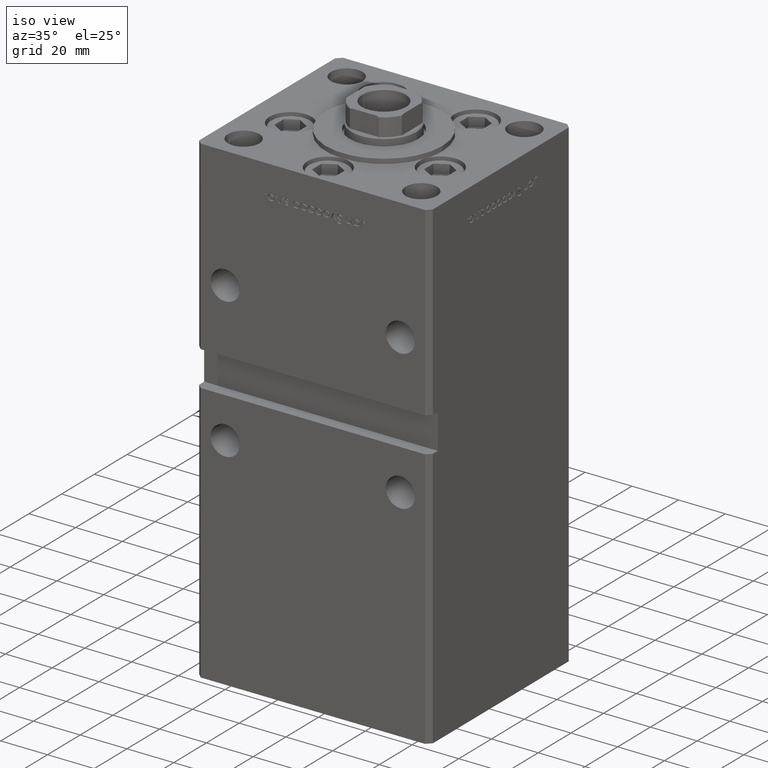
[diagram: clean part render]
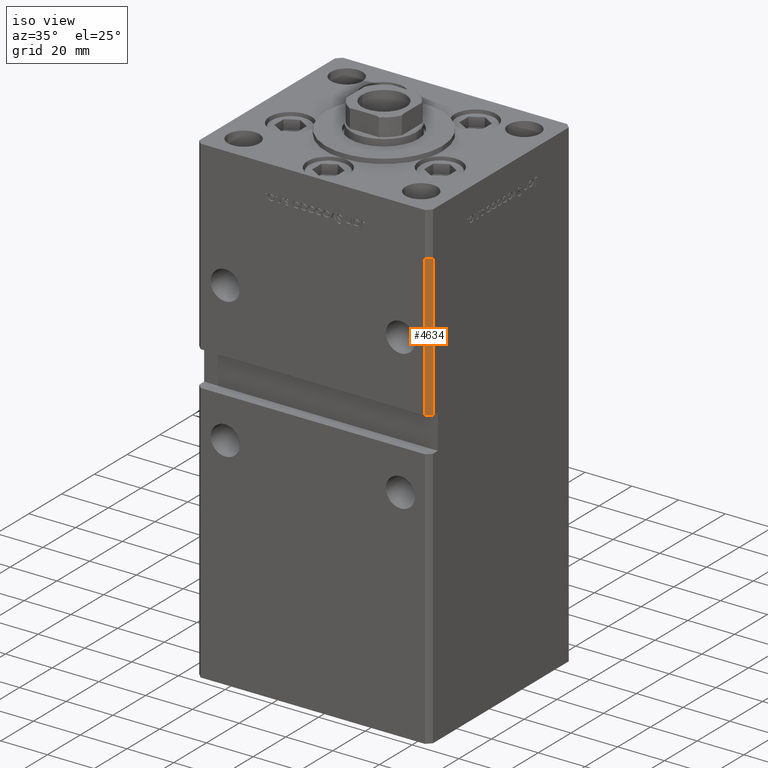
[diagram: same view with one face highlighted and labeled with its STEP entity id]
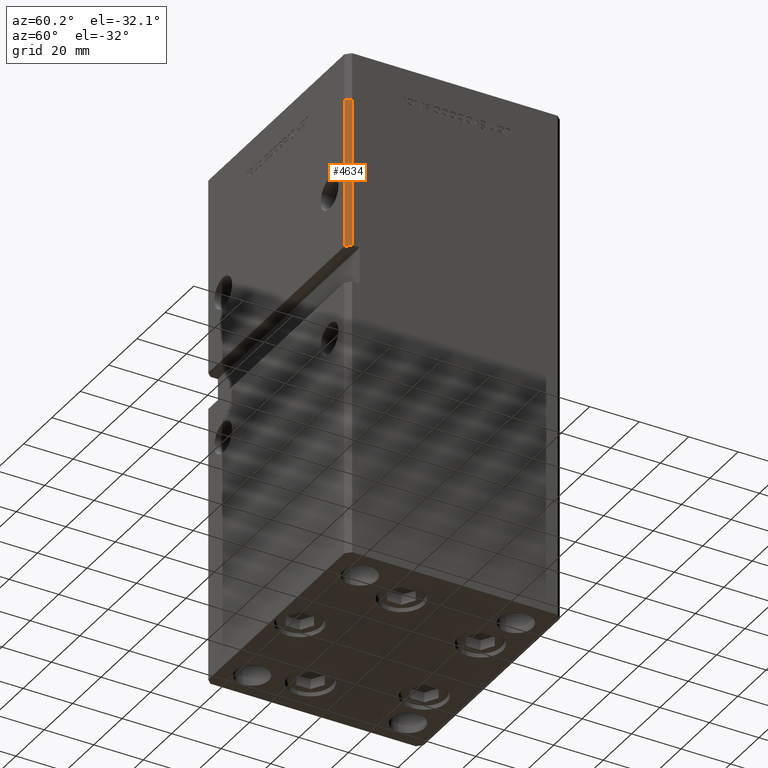
[diagram: same view with one face highlighted and labeled with its STEP entity id]
A machine part, iso view. The second image highlights one B-rep face of the part: STEP entity #4634.
A second angle (auxiliary view) of the same face is appended — the face is thin or edge-on in the first view.
In plain terms, the highlighted planar face has unit normal (0.7071, -0.7071, 0).
Its self-contained STEP definition (entity closure, byte-faithful):
#909 = LINE ( 'NONE', #18118, #46127 ) ;
#2053 = EDGE_LOOP ( 'NONE', ( #49051, #11661, #40520, #3454 ) ) ;
#2220 = EDGE_CURVE ( 'NONE', #37364, #4802, #909, .T. ) ;
#3454 = ORIENTED_EDGE ( 'NONE', *, *, #33905, .T. ) ;
#4177 = VECTOR ( 'NONE', #39587, 1000.000000000000000 ) ;
#4634 = ADVANCED_FACE ( 'NONE', ( #31209 ), #35253, .T. ) ;
#4802 = VERTEX_POINT ( 'NONE', #21774 ) ;
#5070 = VECTOR ( 'NONE', #7442, 1000.000000000000000 ) ;
#7029 = LINE ( 'NONE', #47667, #4177 ) ;
#7442 = DIRECTION ( 'NONE',  ( -0.000000000000000000, -0.000000000000000000, -1.000000000000000000 ) ) ;
#11661 = ORIENTED_EDGE ( 'NONE', *, *, #35687, .F. ) ;
#17690 = LINE ( 'NONE', #28726, #28004 ) ;
#18118 = CARTESIAN_POINT ( 'NONE',  ( 49.99999999999998579, -41.49999999999999289, 168.5000000000000000 ) ) ;
#18564 = CARTESIAN_POINT ( 'NONE',  ( 49.99999999999998579, -41.49999999999999289, 168.5000000000000000 ) ) ;
#19319 = VERTEX_POINT ( 'NONE', #32296 ) ;
#19911 = CARTESIAN_POINT ( 'NONE',  ( 49.99999999999998579, -41.49999999999999289, 168.5000000000000000 ) ) ;
#21194 = DIRECTION ( 'NONE',  ( -0.7071067811865474617, -0.7071067811865474617, 0.000000000000000000 ) ) ;
#21774 = CARTESIAN_POINT ( 'NONE',  ( 47.99999999999998579, -43.50000000000000000, 168.5000000000000000 ) ) ;
#22572 = VERTEX_POINT ( 'NONE', #31399 ) ;
#23348 = EDGE_CURVE ( 'NONE', #22572, #19319, #17690, .T. ) ;
#27439 = DIRECTION ( 'NONE',  ( 0.7071067811865474617, 0.7071067811865474617, 0.000000000000000000 ) ) ;
#28004 = VECTOR ( 'NONE', #21194, 1000.000000000000114 ) ;
#28726 = CARTESIAN_POINT ( 'NONE',  ( 49.99999999999998579, -41.49999999999999289, 107.9999999999999858 ) ) ;
#31209 = FACE_OUTER_BOUND ( 'NONE', #2053, .T. ) ;
#31399 = CARTESIAN_POINT ( 'NONE',  ( 49.99999999999998579, -41.49999999999999289, 107.9999999999999858 ) ) ;
#32296 = CARTESIAN_POINT ( 'NONE',  ( 47.99999999999998579, -43.50000000000000000, 107.9999999999999858 ) ) ;
#33905 = EDGE_CURVE ( 'NONE', #4802, #19319, #7029, .T. ) ;
#35253 = PLANE ( 'NONE',  #48778 ) ;
#35433 = CARTESIAN_POINT ( 'NONE',  ( 49.99999999999998579, -41.49999999999999289, 168.5000000000000000 ) ) ;
#35687 = EDGE_CURVE ( 'NONE', #37364, #22572, #40549, .T. ) ;
#37364 = VERTEX_POINT ( 'NONE', #18564 ) ;
#39587 = DIRECTION ( 'NONE',  ( -0.000000000000000000, -0.000000000000000000, -1.000000000000000000 ) ) ;
#40520 = ORIENTED_EDGE ( 'NONE', *, *, #2220, .T. ) ;
#40549 = LINE ( 'NONE', #35433, #5070 ) ;
#45842 = DIRECTION ( 'NONE',  ( -0.7071067811865474617, -0.7071067811865474617, 0.000000000000000000 ) ) ;
#46127 = VECTOR ( 'NONE', #45842, 1000.000000000000114 ) ;
#47629 = DIRECTION ( 'NONE',  ( 0.7071067811865475727, -0.7071067811865475727, 0.000000000000000000 ) ) ;
#47667 = CARTESIAN_POINT ( 'NONE',  ( 47.99999999999998579, -43.50000000000000000, 168.5000000000000000 ) ) ;
#48778 = AXIS2_PLACEMENT_3D ( 'NONE', #19911, #47629, #27439 ) ;
#49051 = ORIENTED_EDGE ( 'NONE', *, *, #23348, .F. ) ;